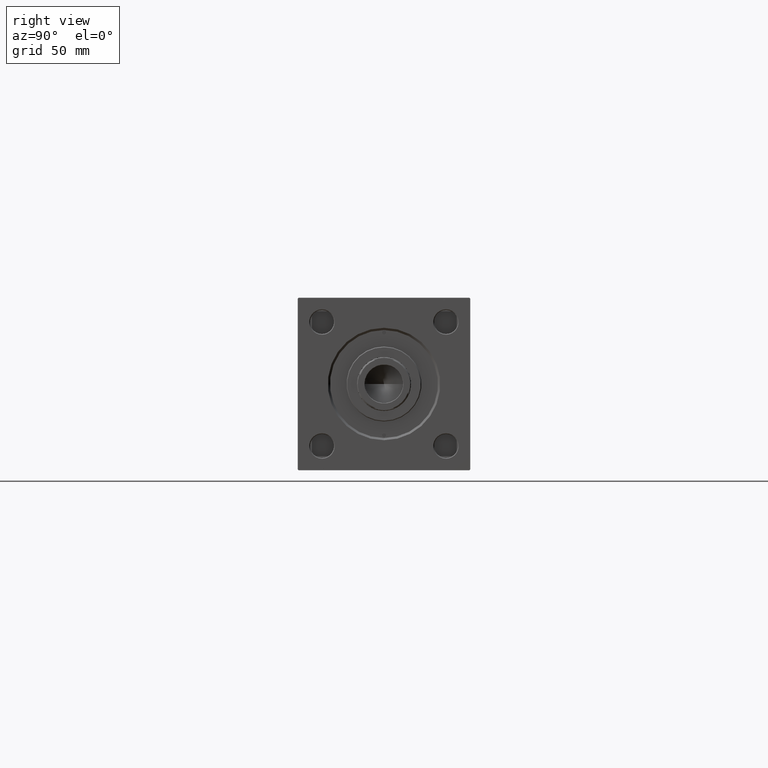
[diagram: clean part render]
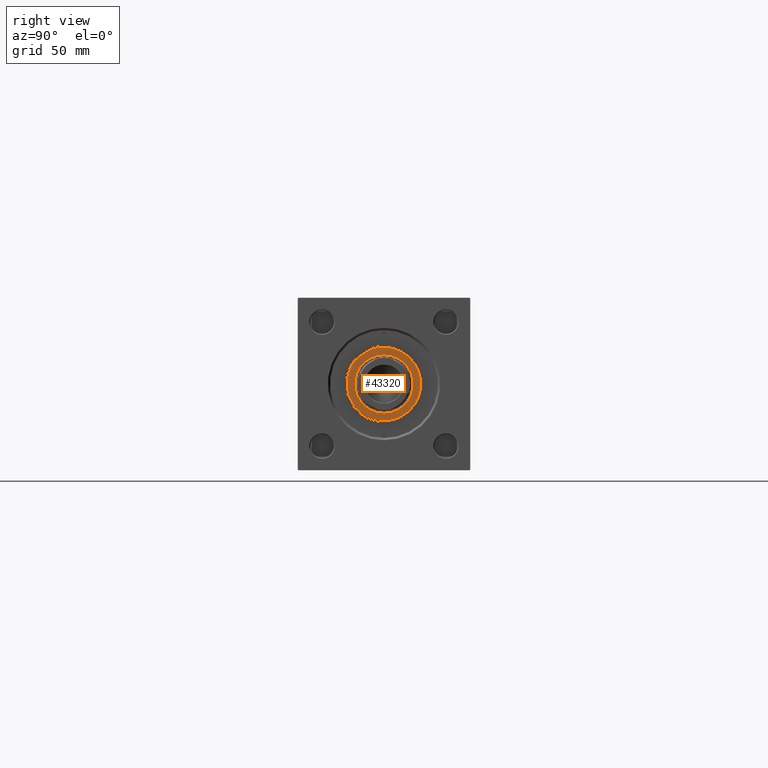
[diagram: same view with one face highlighted and labeled with its STEP entity id]
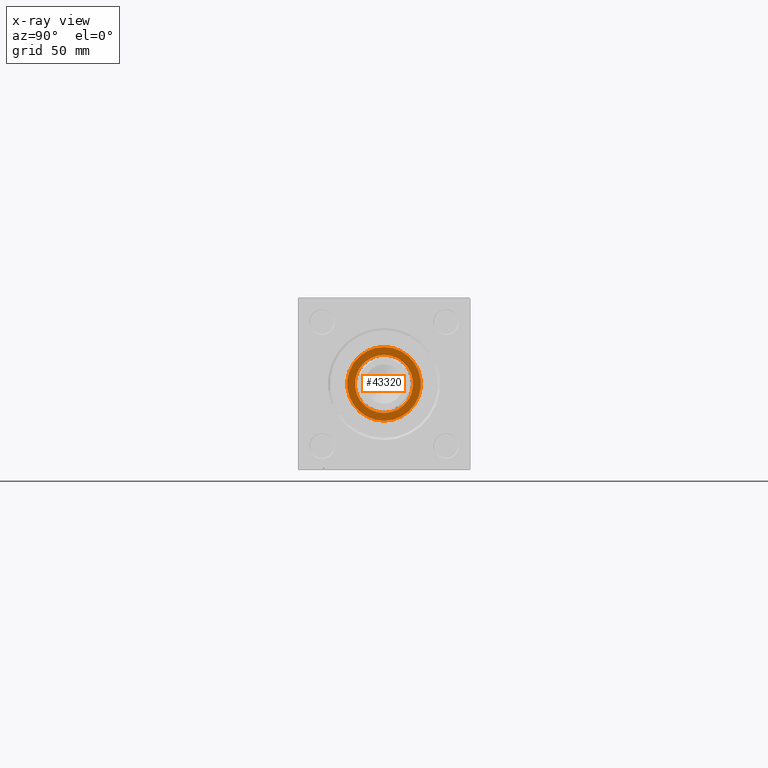
[diagram: x-ray of the same camera — body ghosted, the highlighted face saturated]
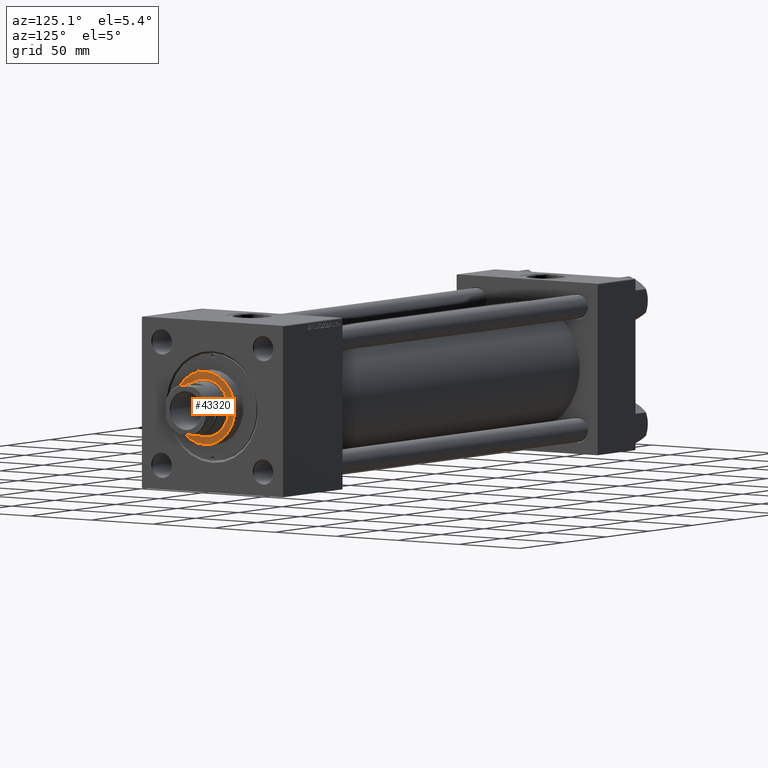
[diagram: same view with one face highlighted and labeled with its STEP entity id]
A machine part, right view. The second image highlights one B-rep face of the part: STEP entity #43320.
The next image is the same camera in x-ray: the body ghosted, the highlighted face saturated — about 0% of this face is hidden behind the body in this view.
A second angle (auxiliary view) of the same face is appended — the face is thin or edge-on in the first view.
In plain terms, the highlighted planar face has unit normal (1, 0, 0).
Its self-contained STEP definition (entity closure, byte-faithful):
#132 = ORIENTED_EDGE ( 'NONE', *, *, #34764, .T. ) ;
#492 = VERTEX_POINT ( 'NONE', #25536 ) ;
#1670 = DIRECTION ( 'NONE',  ( 1.000000000000000000, 0.000000000000000000, 0.000000000000000000 ) ) ;
#1929 = DIRECTION ( 'NONE',  ( 1.000000000000000000, 0.000000000000000000, 0.000000000000000000 ) ) ;
#1997 = AXIS2_PLACEMENT_3D ( 'NONE', #5778, #28916, #1929 ) ;
#2170 = DIRECTION ( 'NONE',  ( 0.000000000000000000, 0.000000000000000000, 1.000000000000000000 ) ) ;
#4027 = AXIS2_PLACEMENT_3D ( 'NONE', #26463, #42661, #27486 ) ;
#4240 = DIRECTION ( 'NONE',  ( 1.000000000000000000, 0.000000000000000000, 0.000000000000000000 ) ) ;
#4955 = VERTEX_POINT ( 'NONE', #47916 ) ;
#5778 = CARTESIAN_POINT ( 'NONE',  ( 0.000000000000000000, 0.000000000000000000, 37.69999999999999574 ) ) ;
#7825 = CARTESIAN_POINT ( 'NONE',  ( 0.000000000000000000, 0.000000000000000000, 37.69999999999999574 ) ) ;
#8386 = FACE_BOUND ( 'NONE', #10313, .T. ) ;
#9187 = AXIS2_PLACEMENT_3D ( 'NONE', #7825, #11415, #4240 ) ;
#9419 = CIRCLE ( 'NONE', #16785, 24.49999999999999645 ) ;
#10313 = EDGE_LOOP ( 'NONE', ( #42243, #44082 ) ) ;
#11415 = DIRECTION ( 'NONE',  ( 0.000000000000000000, 0.000000000000000000, 1.000000000000000000 ) ) ;
#12736 = DIRECTION ( 'NONE',  ( 0.000000000000000000, 0.000000000000000000, 1.000000000000000000 ) ) ;
#16488 = EDGE_CURVE ( 'NONE', #4955, #20276, #32993, .T. ) ;
#16785 = AXIS2_PLACEMENT_3D ( 'NONE', #25304, #2170, #1670 ) ;
#20276 = VERTEX_POINT ( 'NONE', #24836 ) ;
#20743 = PLANE ( 'NONE',  #23658 ) ;
#23658 = AXIS2_PLACEMENT_3D ( 'NONE', #47194, #12736, #44119 ) ;
#24836 = CARTESIAN_POINT ( 'NONE',  ( -19.50000000000000000, 2.388061258337338939E-15, 37.69999999999999574 ) ) ;
#25304 = CARTESIAN_POINT ( 'NONE',  ( 0.000000000000000000, 0.000000000000000000, 37.69999999999999574 ) ) ;
#25536 = CARTESIAN_POINT ( 'NONE',  ( 24.49999999999999645, 3.031000827889698861E-15, 37.69999999999999574 ) ) ;
#26463 = CARTESIAN_POINT ( 'NONE',  ( 0.000000000000000000, 0.000000000000000000, 37.69999999999999574 ) ) ;
#26739 = EDGE_CURVE ( 'NONE', #29541, #492, #28256, .T. ) ;
#27486 = DIRECTION ( 'NONE',  ( 1.000000000000000000, 0.000000000000000000, 0.000000000000000000 ) ) ;
#27955 = CARTESIAN_POINT ( 'NONE',  ( -24.49999999999999645, 0.000000000000000000, 37.69999999999999574 ) ) ;
#28256 = CIRCLE ( 'NONE', #1997, 24.49999999999999645 ) ;
#28916 = DIRECTION ( 'NONE',  ( 0.000000000000000000, 0.000000000000000000, 1.000000000000000000 ) ) ;
#29541 = VERTEX_POINT ( 'NONE', #27955 ) ;
#30833 = ORIENTED_EDGE ( 'NONE', *, *, #26739, .T. ) ;
#32993 = CIRCLE ( 'NONE', #9187, 19.50000000000000000 ) ;
#34764 = EDGE_CURVE ( 'NONE', #492, #29541, #9419, .T. ) ;
#36422 = FACE_OUTER_BOUND ( 'NONE', #43513, .T. ) ;
#42243 = ORIENTED_EDGE ( 'NONE', *, *, #16488, .F. ) ;
#42661 = DIRECTION ( 'NONE',  ( 0.000000000000000000, 0.000000000000000000, 1.000000000000000000 ) ) ;
#43320 = ADVANCED_FACE ( 'NONE', ( #8386, #36422 ), #20743, .T. ) ;
#43431 = CIRCLE ( 'NONE', #4027, 19.50000000000000000 ) ;
#43513 = EDGE_LOOP ( 'NONE', ( #30833, #132 ) ) ;
#44082 = ORIENTED_EDGE ( 'NONE', *, *, #48330, .F. ) ;
#44119 = DIRECTION ( 'NONE',  ( 1.000000000000000000, 0.000000000000000000, -0.000000000000000000 ) ) ;
#47194 = CARTESIAN_POINT ( 'NONE',  ( 0.000000000000000000, 0.000000000000000000, 37.69999999999999574 ) ) ;
#47916 = CARTESIAN_POINT ( 'NONE',  ( 19.50000000000000000, 0.000000000000000000, 37.69999999999999574 ) ) ;
#48330 = EDGE_CURVE ( 'NONE', #20276, #4955, #43431, .T. ) ;